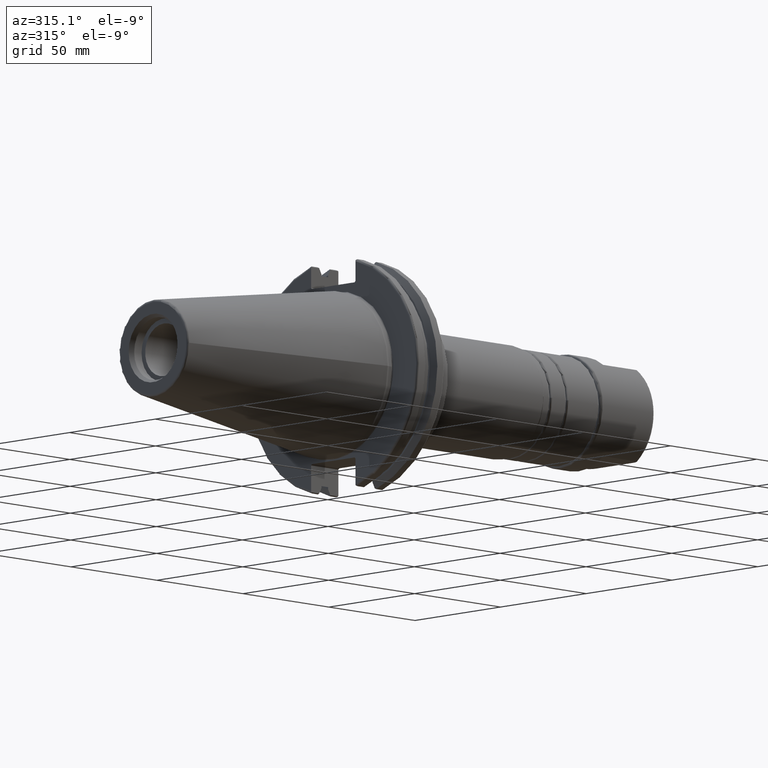
[diagram: clean part render]
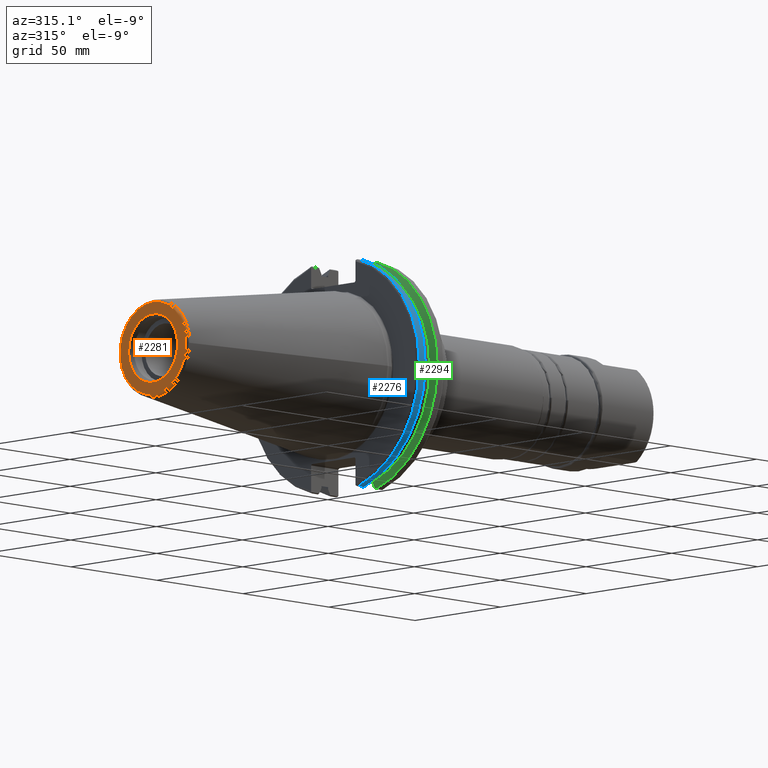
[diagram: same view with three faces highlighted in distinct colors, each labeled with its STEP entity id]
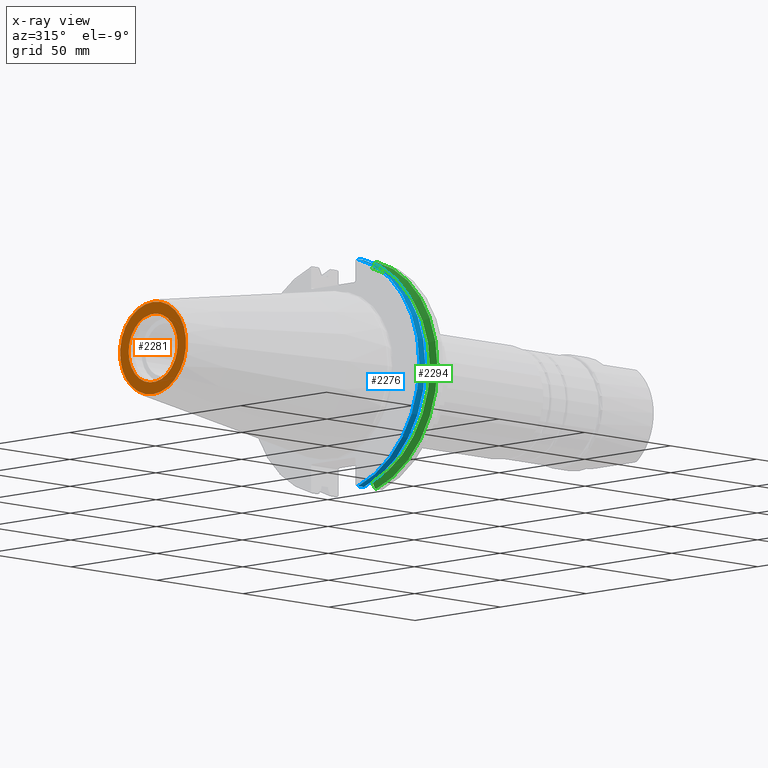
[diagram: x-ray of the same camera — body ghosted, the three highlighted faces saturated]
A machine part, auxiliary view with three faces highlighted in distinct colors.
The next image is the same camera in x-ray (body ghosted, the three faces saturated) — at least one of them is partly hidden behind the body in this view.
Their STEP definitions:

[orange] entity #2281 — the highlighted planar face has unit normal (-1, 0, 0).
#558=FACE_BOUND('',#876,.T.);
#600=CIRCLE('',#2621,19.2435889303637);
#601=CIRCLE('',#2623,14.2875);
#759=FACE_OUTER_BOUND('',#875,.T.);
#875=EDGE_LOOP('',(#1844));
#876=EDGE_LOOP('',(#1845));
#1311=VERTEX_POINT('',#4000);
#1312=VERTEX_POINT('',#4004);
#1515=EDGE_CURVE('',#1311,#1311,#600,.T.);
#1516=EDGE_CURVE('',#1312,#1312,#601,.T.);
#1844=ORIENTED_EDGE('',*,*,#1515,.F.);
#1845=ORIENTED_EDGE('',*,*,#1516,.T.);
#2205=PLANE('',#2622);
#2281=ADVANCED_FACE('',(#759,#558),#2205,.T.);
#2621=AXIS2_PLACEMENT_3D('',#4002,#3055,#3056);
#2622=AXIS2_PLACEMENT_3D('',#4003,#3057,#3058);
#2623=AXIS2_PLACEMENT_3D('',#4005,#3059,#3060);
#3055=DIRECTION('center_axis',(1.,0.,0.));
#3056=DIRECTION('ref_axis',(0.,-1.,1.83697019872103E-16));
#3057=DIRECTION('center_axis',(-1.,0.,0.));
#3058=DIRECTION('ref_axis',(0.,0.,1.));
#3059=DIRECTION('center_axis',(1.,0.,0.));
#3060=DIRECTION('ref_axis',(0.,0.,-1.));
#4000=CARTESIAN_POINT('',(-101.6,-2.35665995876774E-15,19.2435889303637));
#4002=CARTESIAN_POINT('Origin',(-101.6,0.,0.));
#4003=CARTESIAN_POINT('Origin',(-101.6,20.1083333333333,0.));
#4004=CARTESIAN_POINT('',(-101.6,-14.2875,-1.74971411428178E-15));
#4005=CARTESIAN_POINT('Origin',(-101.6,0.,0.));

[blue] entity #2276 — the highlighted cylindrical surface (partial cylindrical patch) has radius 49.2125 mm, axis along (1, 0, 0).
#594=CIRCLE('',#2609,49.2125);
#595=CIRCLE('',#2612,49.2125);
#707=CYLINDRICAL_SURFACE('',#2611,49.2125);
#754=FACE_OUTER_BOUND('',#870,.T.);
#870=EDGE_LOOP('',(#1821,#1822,#1823,#1824));
#1018=LINE('',#3950,#1148);
#1019=LINE('',#3956,#1149);
#1148=VECTOR('',#3032,10.);
#1149=VECTOR('',#3035,10.);
#1301=VERTEX_POINT('',#3929);
#1302=VERTEX_POINT('',#3938);
#1303=VERTEX_POINT('',#3949);
#1304=VERTEX_POINT('',#3955);
#1499=EDGE_CURVE('',#1301,#1302,#594,.T.);
#1501=EDGE_CURVE('',#1302,#1303,#1018,.T.);
#1503=EDGE_CURVE('',#1304,#1301,#1019,.T.);
#1504=EDGE_CURVE('',#1303,#1304,#595,.T.);
#1821=ORIENTED_EDGE('',*,*,#1499,.F.);
#1822=ORIENTED_EDGE('',*,*,#1503,.F.);
#1823=ORIENTED_EDGE('',*,*,#1504,.F.);
#1824=ORIENTED_EDGE('',*,*,#1501,.F.);
#2276=ADVANCED_FACE('',(#754),#707,.T.);
#2609=AXIS2_PLACEMENT_3D('',#3939,#3028,#3029);
#2611=AXIS2_PLACEMENT_3D('',#3954,#3033,#3034);
#2612=AXIS2_PLACEMENT_3D('',#3957,#3036,#3037);
#3028=DIRECTION('center_axis',(-1.,0.,0.));
#3029=DIRECTION('ref_axis',(0.,-1.,1.60812264967664E-16));
#3032=DIRECTION('',(1.,0.,0.));
#3033=DIRECTION('center_axis',(1.,0.,0.));
#3034=DIRECTION('ref_axis',(0.,-1.,1.22464679914735E-16));
#3035=DIRECTION('',(-1.,0.,0.));
#3036=DIRECTION('center_axis',(1.,0.,0.));
#3037=DIRECTION('ref_axis',(0.,0.,-1.));
#3929=CARTESIAN_POINT('',(4.175,-13.4317035994433,-47.3440544806494));
#3938=CARTESIAN_POINT('',(4.175,-13.4317035994433,47.3440544806494));
#3939=CARTESIAN_POINT('Origin',(4.175,0.,0.));
#3949=CARTESIAN_POINT('',(7.60119096595128,-13.4317035994433,47.3440544806494));
#3950=CARTESIAN_POINT('',(5.38809548297564,-13.4317035994433,47.3440544806494));
#3954=CARTESIAN_POINT('Origin',(5.38809548297564,0.,0.));
#3955=CARTESIAN_POINT('',(7.60119096595128,-13.4317035994433,-47.3440544806494));
#3956=CARTESIAN_POINT('',(5.38809548297564,-13.4317035994433,-47.3440544806494));
#3957=CARTESIAN_POINT('Origin',(7.60119096595128,0.,0.));

[green] entity #2294 — the highlighted conical surface has half-angle 60 deg.
#515=(
BOUNDED_CURVE()
B_SPLINE_CURVE(2,(#3898,#3899,#3900),.UNSPECIFIED.,.F.,.F.)
B_SPLINE_CURVE_WITH_KNOTS((3,3),(0.0558332664529572,0.331657177124506),
 .UNSPECIFIED.)
CURVE()
GEOMETRIC_REPRESENTATION_ITEM()
RATIONAL_B_SPLINE_CURVE((1.00012873636816,1.00038235574567,1.))
REPRESENTATION_ITEM('')
);
#516=(
BOUNDED_CURVE()
B_SPLINE_CURVE(2,(#3906,#3907,#3908),.UNSPECIFIED.,.F.,.F.)
B_SPLINE_CURVE_WITH_KNOTS((3,3),(0.,0.27582391067293),.UNSPECIFIED.)
CURVE()
GEOMETRIC_REPRESENTATION_ITEM()
RATIONAL_B_SPLINE_CURVE((1.,1.00038235573837,1.00012873636569))
REPRESENTATION_ITEM('')
);
#523=(
BOUNDED_CURVE()
B_SPLINE_CURVE(2,(#4041,#4042,#4043),.UNSPECIFIED.,.F.,.F.)
B_SPLINE_CURVE_WITH_KNOTS((3,3),(0.,0.0648240472897573),.UNSPECIFIED.)
CURVE()
GEOMETRIC_REPRESENTATION_ITEM()
RATIONAL_B_SPLINE_CURVE((1.,1.00011477674842,1.00019140645957))
REPRESENTATION_ITEM('')
);
#524=(
BOUNDED_CURVE()
B_SPLINE_CURVE(2,(#4057,#4058,#4059),.UNSPECIFIED.,.F.,.F.)
B_SPLINE_CURVE_WITH_KNOTS((3,3),(0.325260944932533,0.390084992222205),
 .UNSPECIFIED.)
CURVE()
GEOMETRIC_REPRESENTATION_ITEM()
RATIONAL_B_SPLINE_CURVE((1.00019140646005,1.0001147767487,1.))
REPRESENTATION_ITEM('')
);
#545=CONICAL_SURFACE('',#2640,47.8172386482472,1.0471975511966);
#603=CIRCLE('',#2634,49.2125);
#606=CIRCLE('',#2641,46.4219772964944);
#772=FACE_OUTER_BOUND('',#889,.T.);
#889=EDGE_LOOP('',(#1903,#1904,#1905,#1906,#1907,#1908));
#1292=VERTEX_POINT('',#3895);
#1293=VERTEX_POINT('',#3897);
#1294=VERTEX_POINT('',#3903);
#1295=VERTEX_POINT('',#3905);
#1320=VERTEX_POINT('',#4039);
#1321=VERTEX_POINT('',#4045);
#1487=EDGE_CURVE('',#1293,#1292,#515,.T.);
#1490=EDGE_CURVE('',#1295,#1294,#516,.T.);
#1532=EDGE_CURVE('',#1320,#1294,#523,.T.);
#1534=EDGE_CURVE('',#1321,#1320,#603,.T.);
#1539=EDGE_CURVE('',#1293,#1321,#524,.T.);
#1540=EDGE_CURVE('',#1292,#1295,#606,.T.);
#1903=ORIENTED_EDGE('',*,*,#1532,.F.);
#1904=ORIENTED_EDGE('',*,*,#1534,.F.);
#1905=ORIENTED_EDGE('',*,*,#1539,.F.);
#1906=ORIENTED_EDGE('',*,*,#1487,.T.);
#1907=ORIENTED_EDGE('',*,*,#1540,.T.);
#1908=ORIENTED_EDGE('',*,*,#1490,.T.);
#2294=ADVANCED_FACE('',(#772),#545,.T.);
#2634=AXIS2_PLACEMENT_3D('',#4047,#3094,#3095);
#2640=AXIS2_PLACEMENT_3D('',#4060,#3108,#3109);
#2641=AXIS2_PLACEMENT_3D('',#4061,#3110,#3111);
#3094=DIRECTION('center_axis',(1.,0.,0.));
#3095=DIRECTION('ref_axis',(0.,0.,-1.));
#3108=DIRECTION('center_axis',(1.,0.,0.));
#3109=DIRECTION('ref_axis',(0.,-1.,-1.22464679914735E-16));
#3110=DIRECTION('center_axis',(1.,0.,0.));
#3111=DIRECTION('ref_axis',(0.,0.,-1.));
#3895=CARTESIAN_POINT('',(13.0423,-12.95,44.5791147973604));
#3897=CARTESIAN_POINT('',(14.3750103943757,-12.95,46.9780755322918));
#3898=CARTESIAN_POINT('Ctrl Pts',(14.3750103943757,-12.95,46.9780755322917));
#3899=CARTESIAN_POINT('Ctrl Pts',(13.6911955094858,-12.95,45.7494966802945));
#3900=CARTESIAN_POINT('Ctrl Pts',(13.0423,-12.95,44.5791147973604));
#3903=CARTESIAN_POINT('',(14.3750103943757,-12.95,-46.9780755322917));
#3905=CARTESIAN_POINT('',(13.0423,-12.95,-44.5791147973604));
#3906=CARTESIAN_POINT('Ctrl Pts',(13.0423,-12.95,-44.5791147973604));
#3907=CARTESIAN_POINT('Ctrl Pts',(13.6911955094637,-12.95,-45.7494966802549));
#3908=CARTESIAN_POINT('Ctrl Pts',(14.3750103943757,-12.95,-46.9780755322917));
#4039=CARTESIAN_POINT('',(14.6534090340487,-13.4317035994433,-47.3440544806494));
#4041=CARTESIAN_POINT('Ctrl Pts',(14.6534090340487,-13.4317035994433,-47.3440544806494));
#4042=CARTESIAN_POINT('Ctrl Pts',(14.5131310333618,-13.1896660169966,-47.1601640966264));
#4043=CARTESIAN_POINT('Ctrl Pts',(14.3750103943757,-12.95,-46.9780755322917));
#4045=CARTESIAN_POINT('',(14.6534090340487,-13.4317035994433,47.3440544806494));
#4047=CARTESIAN_POINT('Origin',(14.6534090340487,0.,0.));
#4057=CARTESIAN_POINT('Ctrl Pts',(14.3750103943757,-12.95,46.9780755322918));
#4058=CARTESIAN_POINT('Ctrl Pts',(14.5131310333617,-13.1896660169965,47.1601640966263));
#4059=CARTESIAN_POINT('Ctrl Pts',(14.6534090340487,-13.4317035994433,47.3440544806494));
#4060=CARTESIAN_POINT('Origin',(13.8478545170244,0.,0.));
#4061=CARTESIAN_POINT('Origin',(13.0423,0.,0.));